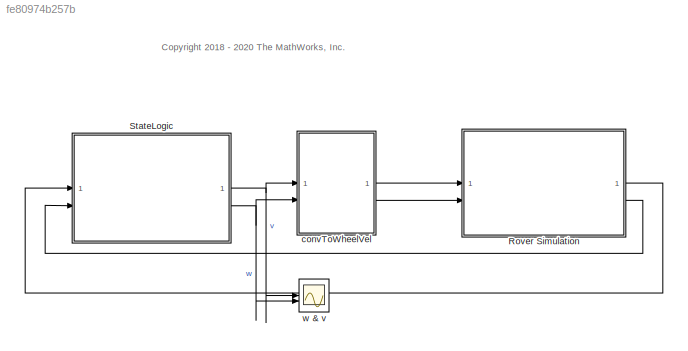
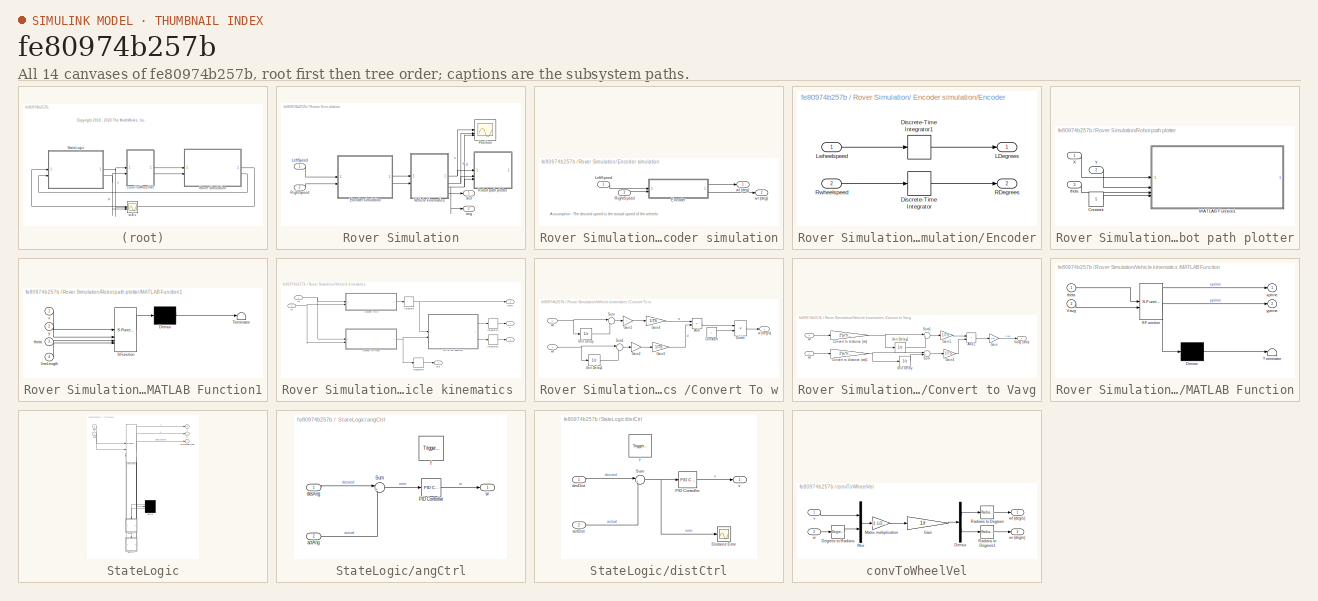
[diagram: thumbnail index - all 14 canvases of the model, root first then tree order]
MODEL slx_fe80974b257b
KIND model
CONFIG AbsTol = auto
CONFIG EnableMultiTasking = on
CONFIG FixedStep = TS
CONFIG MaxStep = auto
CONFIG MinStep = auto
CONFIG PostLoadFcn = params
CONFIG RelTol = 1e-3
CONFIG SampleTimeConstraint = Unconstrained
CONFIG SolverName = FixedStepDiscrete
CONFIG StartTime = 0.0
CONFIG StopTime = 5
WORKSPACE source: mxarray member
WORKSPACE Ia = 0.1
WORKSPACE Id = 0.25
WORKSPACE Pa = 5
WORKSPACE Pd = 9
WORKSPACE TS = 0.01
BLOCK [SubSystem] Rover Simulation
BLOCK [SubSystem] Rover Simulation/ Encoder simulation
BLOCK [SubSystem] Rover Simulation/ Encoder simulation/Encoder
BLOCK [DiscreteIntegrator] Rover Simulation/ Encoder simulation/Encoder/Discrete-Time Integrator
  ICPrevOutput = DiscIntNeverNeededParam
  ICPrevScaledInput = DiscIntNeverNeededParam
  InitialConditionSetting = Auto
  SampleTime = -1
BLOCK [DiscreteIntegrator] Rover Simulation/ Encoder simulation/Encoder/Discrete-Time Integrator1
  ICPrevOutput = DiscIntNeverNeededParam
  ICPrevScaledInput = DiscIntNeverNeededParam
  InitialConditionSetting = Auto
  SampleTime = -1
BLOCK [Outport] Rover Simulation/ Encoder simulation/Encoder/LDegrees
  VectorParamsAs1DForOutWhenUnconnected = off
BLOCK [Inport] Rover Simulation/ Encoder simulation/Encoder/Lwheelspeed
BLOCK [Outport] Rover Simulation/ Encoder simulation/Encoder/RDegrees
  Port = 2
  VectorParamsAs1DForOutWhenUnconnected = off
BLOCK [Inport] Rover Simulation/ Encoder simulation/Encoder/Rwheelspeed
  Port = 2
BLOCK [Inport] Rover Simulation/ Encoder simulation/LeftSpeed
BLOCK [Inport] Rover Simulation/ Encoder simulation/RightSpeed
  Port = 2
BLOCK [Outport] Rover Simulation/ Encoder simulation/wl (deg)
  VectorParamsAs1DForOutWhenUnconnected = off
BLOCK [Outport] Rover Simulation/ Encoder simulation/wr (deg)
  Port = 2
  VectorParamsAs1DForOutWhenUnconnected = off
BLOCK [Inport] Rover Simulation/LeftSpeed
BLOCK [Scope] Rover Simulation/Position
  Floating = off
  NumInputPorts = 3
  ScopeSpecificationString = Simulink.scopes.TimeScopeBlockCfg('CurrentConfiguration', extmgr.ConfigurationSet(extmgr.Configuration('Core','General UI',true),extmgr.Configuration('Core','Source UI',true),extmgr.Configuration('Sources','WiredSimulink',true),extmgr.Configuration('Visuals','Time Domain',true,'SerializedDisplays',{struct('MinYLimReal','-10.03722','MaxYLimReal','290.33494','YLabelReal','','MinYLimMag','0.00000','M...<+1567ch>
BLOCK [Inport] Rover Simulation/RightSpeed
  Port = 2
BLOCK [SubSystem] Rover Simulation/Robot path plotter
BLOCK [Constant] Rover Simulation/Robot path plotter/Constant
  Value = 5
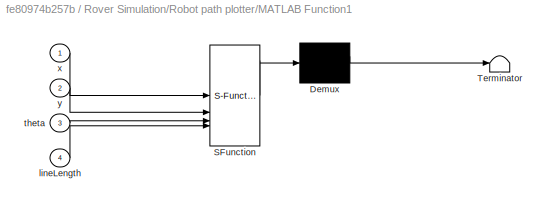
BLOCK [SubSystem] Rover Simulation/Robot path plotter/MATLAB Function1
  ErrorFcn = Stateflow.Translate.translate
  PermitHierarchicalResolution = ExplicitOnly
  SFBlockType = MATLAB Function
  TreatAsAtomicUnit = on
BLOCK [Demux] Rover Simulation/Robot path plotter/MATLAB Function1/ Demux 
  Outputs = 1
BLOCK [S-Function] Rover Simulation/Robot path plotter/MATLAB Function1/ SFunction 
  EnableBusSupport = on
  FunctionName = sf_sfun
  Parameters = StartTheta,StartX,StartY
  PortCounts = [4 1]
  SFcnIsStateOwnerBlock = off
  SFunctionDeploymentMode = off
  Tag = Stateflow S-Function 1
BLOCK [Terminator] Rover Simulation/Robot path plotter/MATLAB Function1/ Terminator 
BLOCK [Inport] Rover Simulation/Robot path plotter/MATLAB Function1/lineLength
  Port = 4
BLOCK [Inport] Rover Simulation/Robot path plotter/MATLAB Function1/theta
  Port = 3
BLOCK [Inport] Rover Simulation/Robot path plotter/MATLAB Function1/x
BLOCK [Inport] Rover Simulation/Robot path plotter/MATLAB Function1/y
  Port = 2
BLOCK [Inport] Rover Simulation/Robot path plotter/X
BLOCK [Inport] Rover Simulation/Robot path plotter/Y
  Port = 2
BLOCK [Inport] Rover Simulation/Robot path plotter/theta
  Port = 3
BLOCK [SubSystem] Rover Simulation/Vehicle kinematics 
BLOCK [SubSystem] Rover Simulation/Vehicle kinematics /Convert To w
BLOCK [Sum] Rover Simulation/Vehicle kinematics /Convert To w/Add
  IconShape = rectangular
  Inputs = +-
BLOCK [Constant] Rover Simulation/Vehicle kinematics /Convert To w/Constant
  Value = L
BLOCK [Product] Rover Simulation/Vehicle kinematics /Convert To w/Divide
  Inputs = */
BLOCK [Gain] Rover Simulation/Vehicle kinematics /Convert To w/Gain1
  Gain = r
BLOCK [Gain] Rover Simulation/Vehicle kinematics /Convert To w/Gain2
  Gain = r
BLOCK [Gain] Rover Simulation/Vehicle kinematics /Convert To w/Gain4
  Gain = 1/TS
BLOCK [Gain] Rover Simulation/Vehicle kinematics /Convert To w/Gain5
  Gain = 1/TS
BLOCK [Sum] Rover Simulation/Vehicle kinematics /Convert To w/Sum
  Inputs = |+-
BLOCK [Sum] Rover Simulation/Vehicle kinematics /Convert To w/Sum1
  Inputs = |+-
BLOCK [UnitDelay] Rover Simulation/Vehicle kinematics /Convert To w/Unit Delay
  HasFrameUpgradeWarning = on
  SampleTime = -1
BLOCK [UnitDelay] Rover Simulation/Vehicle kinematics /Convert To w/Unit Delay1
  HasFrameUpgradeWarning = on
  SampleTime = -1
BLOCK [Outport] Rover Simulation/Vehicle kinematics /Convert To w/w (deg//s)
  VectorParamsAs1DForOutWhenUnconnected = off
BLOCK [Inport] Rover Simulation/Vehicle kinematics /Convert To w/wl
BLOCK [Inport] Rover Simulation/Vehicle kinematics /Convert To w/wr
  Port = 2
BLOCK [SubSystem] Rover Simulation/Vehicle kinematics /Convert to Vavg
BLOCK [Sum] Rover Simulation/Vehicle kinematics /Convert to Vavg/Add1
  IconShape = rectangular
BLOCK [Gain] Rover Simulation/Vehicle kinematics /Convert to Vavg/Convert to distance (cm)
  Gain = 2*pi*r/360
BLOCK [Gain] Rover Simulation/Vehicle kinematics /Convert to Vavg/Convert to distance (cm)1
  Gain = 2*pi*r/360
BLOCK [Gain] Rover Simulation/Vehicle kinematics /Convert to Vavg/Gain
  Gain = 0.5
BLOCK [Gain] Rover Simulation/Vehicle kinematics /Convert to Vavg/Gain4
  Gain = 1/TS
BLOCK [Gain] Rover Simulation/Vehicle kinematics /Convert to Vavg/Gain5
  Gain = 1/TS
BLOCK [Sum] Rover Simulation/Vehicle kinematics /Convert to Vavg/Sum
  Inputs = |+-
BLOCK [Sum] Rover Simulation/Vehicle kinematics /Convert to Vavg/Sum1
  Inputs = |+-
BLOCK [UnitDelay] Rover Simulation/Vehicle kinematics /Convert to Vavg/Unit Delay
  HasFrameUpgradeWarning = on
  SampleTime = -1
BLOCK [UnitDelay] Rover Simulation/Vehicle kinematics /Convert to Vavg/Unit Delay1
  HasFrameUpgradeWarning = on
  SampleTime = -1
BLOCK [Outport] Rover Simulation/Vehicle kinematics /Convert to Vavg/Vavg (cm//s)
  VectorParamsAs1DForOutWhenUnconnected = off
BLOCK [Inport] Rover Simulation/Vehicle kinematics /Convert to Vavg/wl
BLOCK [Inport] Rover Simulation/Vehicle kinematics /Convert to Vavg/wr
  Port = 2
BLOCK [DiscreteIntegrator] Rover Simulation/Vehicle kinematics /Integrator
  ICPrevOutput = DiscIntNeverNeededParam
  ICPrevScaledInput = DiscIntNeverNeededParam
  InitialCondition = StartTheta
  InitialConditionSetting = Auto
  SampleTime = -1
  gainval = 1
BLOCK [DiscreteIntegrator] Rover Simulation/Vehicle kinematics /Integrator1
  ICPrevOutput = DiscIntNeverNeededParam
  ICPrevScaledInput = DiscIntNeverNeededParam
  InitialCondition = StartX
  InitialConditionSetting = Auto
  SampleTime = -1
  gainval = 1
BLOCK [DiscreteIntegrator] Rover Simulation/Vehicle kinematics /Integrator2
  ICPrevOutput = DiscIntNeverNeededParam
  ICPrevScaledInput = DiscIntNeverNeededParam
  InitialCondition = StartY
  InitialConditionSetting = Auto
  SampleTime = -1
  gainval = 1
BLOCK [DiscreteIntegrator] Rover Simulation/Vehicle kinematics /Integrator3
  ICPrevOutput = DiscIntNeverNeededParam
  ICPrevScaledInput = DiscIntNeverNeededParam
  InitialConditionSetting = Auto
  SampleTime = -1
  gainval = 1
BLOCK [SubSystem] Rover Simulation/Vehicle kinematics /MATLAB Function
  ErrorFcn = Stateflow.Translate.translate
  PermitHierarchicalResolution = ExplicitOnly
  SFBlockType = MATLAB Function
  TreatAsAtomicUnit = on
BLOCK [Demux] Rover Simulation/Vehicle kinematics /MATLAB Function/ Demux 
  Outputs = 1
BLOCK [S-Function] Rover Simulation/Vehicle kinematics /MATLAB Function/ SFunction 
  EnableBusSupport = on
  FunctionName = sf_sfun
  PortCounts = [2 3]
  SFcnIsStateOwnerBlock = off
  SFunctionDeploymentMode = off
  Tag = Stateflow S-Function 2
BLOCK [Terminator] Rover Simulation/Vehicle kinematics /MATLAB Function/ Terminator 
BLOCK [Inport] Rover Simulation/Vehicle kinematics /MATLAB Function/Vavg
  Port = 2
BLOCK [Inport] Rover Simulation/Vehicle kinematics /MATLAB Function/theta
BLOCK [Outport] Rover Simulation/Vehicle kinematics /MATLAB Function/xprime
  VectorParamsAs1DForOutWhenUnconnected = off
BLOCK [Outport] Rover Simulation/Vehicle kinematics /MATLAB Function/yprime
  Port = 2
  VectorParamsAs1DForOutWhenUnconnected = off
BLOCK [Outport] Rover Simulation/Vehicle kinematics /dist
  Port = 4
  VectorParamsAs1DForOutWhenUnconnected = off
BLOCK [Outport] Rover Simulation/Vehicle kinematics /theta
  Port = 3
  VectorParamsAs1DForOutWhenUnconnected = off
BLOCK [Inport] Rover Simulation/Vehicle kinematics /wl
BLOCK [Inport] Rover Simulation/Vehicle kinematics /wr
  Port = 2
BLOCK [Outport] Rover Simulation/Vehicle kinematics /x
  VectorParamsAs1DForOutWhenUnconnected = off
BLOCK [Outport] Rover Simulation/Vehicle kinematics /y
  Port = 2
  VectorParamsAs1DForOutWhenUnconnected = off
BLOCK [Outport] Rover Simulation/ang
  Port = 2
  VectorParamsAs1DForOutWhenUnconnected = off
BLOCK [Outport] Rover Simulation/dist
  VectorParamsAs1DForOutWhenUnconnected = off
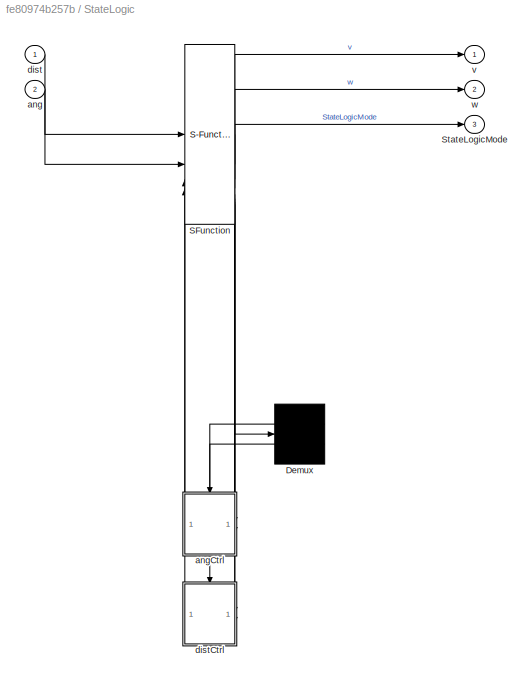
BLOCK [SubSystem] StateLogic
  ErrorFcn = Stateflow.Translate.translate
  PermitHierarchicalResolution = ExplicitOnly
  SFBlockType = Chart
  TreatAsAtomicUnit = on
BLOCK [Demux] StateLogic/ Demux 
  Outputs = 2
BLOCK [S-Function] StateLogic/ SFunction 
  EnableBusSupport = on
  FunctionName = sf_sfun
  PortCounts = [4 8]
  SFcnIsStateOwnerBlock = off
  SFunctionDeploymentMode = off
  Tag = Stateflow S-Function 4
BLOCK [Outport] StateLogic/StateLogicMode
  Port = 3
BLOCK [Inport] StateLogic/ang
  Port = 2
BLOCK [SubSystem] StateLogic/angCtrl
  PreDeleteFcn = Stateflow.SLINSF.SimulinkMan.removePreDeleteFcn
  UndoDeleteFcn = Stateflow.SLINSF.SimulinkMan.restorePreDeleteFcn
BLOCK [Reference] StateLogic/angCtrl/PID Controller  REF=slpidlib/PID Controller
  SourceBlock = slpidlib/PID Controller
  SourceType = PID 1dof
BLOCK [Sum] StateLogic/angCtrl/Sum
  Inputs = |+-
BLOCK [Inport] StateLogic/angCtrl/actAng
  OutDataTypeStr = double
  Port = 2
  PortDimensions = 1
  SignalType = real
  VarSizeSig = No
BLOCK [Inport] StateLogic/angCtrl/desAng
  OutDataTypeStr = double
  PortDimensions = 1
  SignalType = real
  VarSizeSig = No
BLOCK [TriggerPort] StateLogic/angCtrl/f
  CopyFcn = Stateflow.SLINSF.SimulinkMan.removeBlockPreDeleteFcn
  PreDeleteFcn = Stateflow.SLINSF.SimulinkMan.unsafePredeleteFcn
  StatesWhenEnabling = held
  TriggerType = function-call
  VariantControl = (inherit)
BLOCK [Outport] StateLogic/angCtrl/w
  VectorParamsAs1DForOutWhenUnconnected = off
BLOCK [Inport] StateLogic/dist
BLOCK [SubSystem] StateLogic/distCtrl
  PreDeleteFcn = Stateflow.SLINSF.SimulinkMan.removePreDeleteFcn
  UndoDeleteFcn = Stateflow.SLINSF.SimulinkMan.restorePreDeleteFcn
BLOCK [Scope] StateLogic/distCtrl/Distance Error
  Floating = off
  NumInputPorts = 1
  ScopeSpecificationString = Simulink.scopes.TimeScopeBlockCfg('CurrentConfiguration', extmgr.ConfigurationSet(extmgr.Configuration('Core','General UI',true),extmgr.Configuration('Core','Source UI',true),extmgr.Configuration('Sources','WiredSimulink',true,'DataLoggingVariableName','ScopeData1'),extmgr.Configuration('Visuals','Time Domain',true,'SerializedDisplays',{struct('MinYLimReal','29.58024','MaxYLimReal','30.21384','YLa...<+1530ch>
BLOCK [Reference] StateLogic/distCtrl/PID Controller  REF=slpidlib/PID Controller
  SourceBlock = slpidlib/PID Controller
  SourceType = PID 1dof
BLOCK [Sum] StateLogic/distCtrl/Sum
  Inputs = |+-
BLOCK [Inport] StateLogic/distCtrl/actDist
  OutDataTypeStr = double
  Port = 2
  PortDimensions = 1
  SignalType = real
  VarSizeSig = No
BLOCK [Inport] StateLogic/distCtrl/desDist
  OutDataTypeStr = double
  PortDimensions = 1
  SignalType = real
  VarSizeSig = No
BLOCK [TriggerPort] StateLogic/distCtrl/f
  CopyFcn = Stateflow.SLINSF.SimulinkMan.removeBlockPreDeleteFcn
  PreDeleteFcn = Stateflow.SLINSF.SimulinkMan.unsafePredeleteFcn
  StatesWhenEnabling = held
  TriggerType = function-call
  VariantControl = (inherit)
BLOCK [Outport] StateLogic/distCtrl/v
  VectorParamsAs1DForOutWhenUnconnected = off
BLOCK [Outport] StateLogic/v
  VectorParamsAs1DForOutWhenUnconnected = off
BLOCK [Outport] StateLogic/w
  Port = 2
  VectorParamsAs1DForOutWhenUnconnected = off
BLOCK [SubSystem] convToWheelVel
BLOCK [Gain] convToWheelVel/ Gain
  Gain = 1/r
  Multiplication = Matrix(K*u)
BLOCK [Reference] convToWheelVel/Degrees to Radians  REF=simulink_extras/Transformations/Degrees to
Radians
  SourceBlock = simulink_extras/Transformations/Degrees to\nRadians
  SourceType = DegreesToRadians
BLOCK [Demux] convToWheelVel/Demux
  Outputs = 2
BLOCK [Gain] convToWheelVel/Matrix multiplication
  Gain = [1 -L/2; 1 L/2]
  Multiplication = Matrix(K*u)
BLOCK [Mux] convToWheelVel/Mux
  DisplayOption = bar
  Inputs = 2
BLOCK [Reference] convToWheelVel/Radians to Degrees  REF=simulink_extras/Transformations/Radians
to Degrees
  SourceBlock = simulink_extras/Transformations/Radians\nto Degrees
  SourceType = RadiansToDegrees
BLOCK [Reference] convToWheelVel/Radians to Degrees1  REF=simulink_extras/Transformations/Radians
to Degrees
  SourceBlock = simulink_extras/Transformations/Radians\nto Degrees
  SourceType = RadiansToDegrees
BLOCK [Inport] convToWheelVel/v
BLOCK [Inport] convToWheelVel/w
  Port = 2
BLOCK [Outport] convToWheelVel/wl (deg//s)
  VectorParamsAs1DForOutWhenUnconnected = off
BLOCK [Outport] convToWheelVel/wr (deg//s)
  Port = 2
  VectorParamsAs1DForOutWhenUnconnected = off
BLOCK [Scope] w & v
  Floating = off
  NumInputPorts = 2
  ScopeSpecificationString = Simulink.scopes.TimeScopeBlockCfg('CurrentConfiguration', extmgr.ConfigurationSet(extmgr.Configuration('Core','General UI',true),extmgr.Configuration('Core','Source UI',true),extmgr.Configuration('Sources','WiredSimulink',true,'DataLoggingVariableName','ScopeData2'),extmgr.Configuration('Visuals','Time Domain',true,'SerializedDisplays',{struct('MinYLimReal','-1.12687','MaxYLimReal','10.14188','YLa...<+2207ch>
ANNOTATION (root): <copyright redacted>
ANNOTATION Rover Simulation/ Encoder simulation: Assumption - The desired speed is the actual speed of the wheels
LINE Rover Simulation/ Encoder simulation/Encoder/Discrete-Time Integrator1:1 -> Rover Simulation/ Encoder simulation/Encoder/LDegrees:1
LINE Rover Simulation/ Encoder simulation/Encoder/Discrete-Time Integrator:1 -> Rover Simulation/ Encoder simulation/Encoder/RDegrees:1
LINE Rover Simulation/ Encoder simulation/Encoder/Lwheelspeed:1 -> Rover Simulation/ Encoder simulation/Encoder/Discrete-Time Integrator1:1
LINE Rover Simulation/ Encoder simulation/Encoder/Rwheelspeed:1 -> Rover Simulation/ Encoder simulation/Encoder/Discrete-Time Integrator:1
LINE Rover Simulation/ Encoder simulation/Encoder:1 -> Rover Simulation/ Encoder simulation/wl (deg):1
LINE Rover Simulation/ Encoder simulation/Encoder:2 -> Rover Simulation/ Encoder simulation/wr (deg):1
LINE Rover Simulation/ Encoder simulation/LeftSpeed:1 -> Rover Simulation/ Encoder simulation/Encoder:1
LINE Rover Simulation/ Encoder simulation/RightSpeed:1 -> Rover Simulation/ Encoder simulation/Encoder:2
LINE Rover Simulation/ Encoder simulation:1 -> Rover Simulation/Vehicle kinematics :1
LINE Rover Simulation/ Encoder simulation:2 -> Rover Simulation/Vehicle kinematics :2
LINE Rover Simulation/LeftSpeed:1 -> Rover Simulation/ Encoder simulation:1
LINE Rover Simulation/RightSpeed:1 -> Rover Simulation/ Encoder simulation:2
LINE Rover Simulation/Robot path plotter/Constant:1 -> Rover Simulation/Robot path plotter/MATLAB Function1:4
LINE Rover Simulation/Robot path plotter/X:1 -> Rover Simulation/Robot path plotter/MATLAB Function1:1
LINE Rover Simulation/Robot path plotter/Y:1 -> Rover Simulation/Robot path plotter/MATLAB Function1:2
LINE Rover Simulation/Robot path plotter/theta:1 -> Rover Simulation/Robot path plotter/MATLAB Function1:3
LINE Rover Simulation/Vehicle kinematics /Convert To w/Add:1 -> Rover Simulation/Vehicle kinematics /Convert To w/Divide:1
LINE Rover Simulation/Vehicle kinematics /Convert To w/Constant:1 -> Rover Simulation/Vehicle kinematics /Convert To w/Divide:2
LINE Rover Simulation/Vehicle kinematics /Convert To w/Divide:1 -> Rover Simulation/Vehicle kinematics /Convert To w/w (deg//s):1
LINE Rover Simulation/Vehicle kinematics /Convert To w/Gain1:1 -> Rover Simulation/Vehicle kinematics /Convert To w/Gain4:1
LINE Rover Simulation/Vehicle kinematics /Convert To w/Gain2:1 -> Rover Simulation/Vehicle kinematics /Convert To w/Gain5:1
LINE Rover Simulation/Vehicle kinematics /Convert To w/Gain4:1 -> Rover Simulation/Vehicle kinematics /Convert To w/Add:1
LINE Rover Simulation/Vehicle kinematics /Convert To w/Gain5:1 -> Rover Simulation/Vehicle kinematics /Convert To w/Add:2
LINE Rover Simulation/Vehicle kinematics /Convert To w/Sum1:1 -> Rover Simulation/Vehicle kinematics /Convert To w/Gain2:1
LINE Rover Simulation/Vehicle kinematics /Convert To w/Sum:1 -> Rover Simulation/Vehicle kinematics /Convert To w/Gain1:1
LINE Rover Simulation/Vehicle kinematics /Convert To w/Unit Delay1:1 -> Rover Simulation/Vehicle kinematics /Convert To w/Sum1:2
LINE Rover Simulation/Vehicle kinematics /Convert To w/Unit Delay:1 -> Rover Simulation/Vehicle kinematics /Convert To w/Sum:2
NET Rover Simulation/Vehicle kinematics /Convert To w/wl:1 -> Rover Simulation/Vehicle kinematics /Convert To w/Sum1:1, Rover Simulation/Vehicle kinematics /Convert To w/Unit Delay1:1
NET Rover Simulation/Vehicle kinematics /Convert To w/wr:1 -> Rover Simulation/Vehicle kinematics /Convert To w/Sum:1, Rover Simulation/Vehicle kinematics /Convert To w/Unit Delay:1
LINE Rover Simulation/Vehicle kinematics /Convert To w:1 -> Rover Simulation/Vehicle kinematics /Integrator:1
LINE Rover Simulation/Vehicle kinematics /Convert to Vavg/Add1:1 -> Rover Simulation/Vehicle kinematics /Convert to Vavg/Gain:1
NET Rover Simulation/Vehicle kinematics /Convert to Vavg/Convert to distance (cm)1:1 -> Rover Simulation/Vehicle kinematics /Convert to Vavg/Sum:1, Rover Simulation/Vehicle kinematics /Convert to Vavg/Unit Delay:1
NET Rover Simulation/Vehicle kinematics /Convert to Vavg/Convert to distance (cm):1 -> Rover Simulation/Vehicle kinematics /Convert to Vavg/Sum1:1, Rover Simulation/Vehicle kinematics /Convert to Vavg/Unit Delay1:1
LINE Rover Simulation/Vehicle kinematics /Convert to Vavg/Gain4:1 -> Rover Simulation/Vehicle kinematics /Convert to Vavg/Add1:2
LINE Rover Simulation/Vehicle kinematics /Convert to Vavg/Gain5:1 -> Rover Simulation/Vehicle kinematics /Convert to Vavg/Add1:1
LINE Rover Simulation/Vehicle kinematics /Convert to Vavg/Gain:1 -> Rover Simulation/Vehicle kinematics /Convert to Vavg/Vavg (cm//s):1
LINE Rover Simulation/Vehicle kinematics /Convert to Vavg/Sum1:1 -> Rover Simulation/Vehicle kinematics /Convert to Vavg/Gain5:1
LINE Rover Simulation/Vehicle kinematics /Convert to Vavg/Sum:1 -> Rover Simulation/Vehicle kinematics /Convert to Vavg/Gain4:1
LINE Rover Simulation/Vehicle kinematics /Convert to Vavg/Unit Delay1:1 -> Rover Simulation/Vehicle kinematics /Convert to Vavg/Sum1:2
LINE Rover Simulation/Vehicle kinematics /Convert to Vavg/Unit Delay:1 -> Rover Simulation/Vehicle kinematics /Convert to Vavg/Sum:2
LINE Rover Simulation/Vehicle kinematics /Convert to Vavg/wl:1 -> Rover Simulation/Vehicle kinematics /Convert to Vavg/Convert to distance (cm):1
LINE Rover Simulation/Vehicle kinematics /Convert to Vavg/wr:1 -> Rover Simulation/Vehicle kinematics /Convert to Vavg/Convert to distance (cm)1:1
NET Rover Simulation/Vehicle kinematics /Convert to Vavg:1 -> Rover Simulation/Vehicle kinematics /Integrator3:1, Rover Simulation/Vehicle kinematics /MATLAB Function:2
LINE Rover Simulation/Vehicle kinematics /Integrator1:1 -> Rover Simulation/Vehicle kinematics /x:1
LINE Rover Simulation/Vehicle kinematics /Integrator2:1 -> Rover Simulation/Vehicle kinematics /y:1
LINE Rover Simulation/Vehicle kinematics /Integrator3:1 -> Rover Simulation/Vehicle kinematics /dist:1
NET Rover Simulation/Vehicle kinematics /Integrator:1 -> Rover Simulation/Vehicle kinematics /MATLAB Function:1, Rover Simulation/Vehicle kinematics /theta:1
LINE Rover Simulation/Vehicle kinematics /MATLAB Function:1 -> Rover Simulation/Vehicle kinematics /Integrator1:1
LINE Rover Simulation/Vehicle kinematics /MATLAB Function:2 -> Rover Simulation/Vehicle kinematics /Integrator2:1
NET Rover Simulation/Vehicle kinematics /wl:1 -> Rover Simulation/Vehicle kinematics /Convert To w:1, Rover Simulation/Vehicle kinematics /Convert to Vavg:1
NET Rover Simulation/Vehicle kinematics /wr:1 -> Rover Simulation/Vehicle kinematics /Convert To w:2, Rover Simulation/Vehicle kinematics /Convert to Vavg:2
NET Rover Simulation/Vehicle kinematics :1 -> Rover Simulation/Position:1, Rover Simulation/Robot path plotter:1
NET Rover Simulation/Vehicle kinematics :2 -> Rover Simulation/Position:2, Rover Simulation/Robot path plotter:2
NET Rover Simulation/Vehicle kinematics :3 -> Rover Simulation/Position:3, Rover Simulation/Robot path plotter:3, Rover Simulation/ang:1
LINE Rover Simulation/Vehicle kinematics :4 -> Rover Simulation/dist:1
LINE Rover Simulation:1 -> StateLogic:1
LINE Rover Simulation:2 -> StateLogic:2
NET StateLogic:1 -> convToWheelVel:1, w & v:1
NET StateLogic:2 -> convToWheelVel:2, w & v:2
LINE convToWheelVel/ Gain:1 -> convToWheelVel/Demux:1
LINE convToWheelVel/Degrees to Radians:1 -> convToWheelVel/Mux:2
LINE convToWheelVel/Demux:1 -> convToWheelVel/Radians to Degrees:1
LINE convToWheelVel/Demux:2 -> convToWheelVel/Radians to Degrees1:1
LINE convToWheelVel/Matrix multiplication:1 -> convToWheelVel/ Gain:1
LINE convToWheelVel/Mux:1 -> convToWheelVel/Matrix multiplication:1
LINE convToWheelVel/Radians to Degrees1:1 -> convToWheelVel/wr (deg//s):1
LINE convToWheelVel/Radians to Degrees:1 -> convToWheelVel/wl (deg//s):1
LINE convToWheelVel/v:1 -> convToWheelVel/Mux:1
LINE convToWheelVel/w:1 -> convToWheelVel/Degrees to Radians:1
LINE convToWheelVel:1 -> Rover Simulation:1
LINE convToWheelVel:2 -> Rover Simulation:2
note: NET lines group one-source signal fan-out (src -> all destinations, sorted); 1:1 wires keep LINE
CHART Rover Simulation/Vehicle kinematics /MATLAB Function states=1 transitions=1
  STATE_LABEL 'eML_blk_kernel()'
  STATE_LABEL 'SCRIPT:\nfunction [xprime, yprime] = vehiclesPath(theta, Vavg)\n%#codegen\n\n% Implement the equation for the real-world location of the rover\nxprime = Vavg*cosd(theta);\nyprime = Vavg*sind(theta);\n'
CHART StateLogic states=14 transitions=5
  STATE_LABEL 'State (Block)\nTransition Condition (->)\n\tTested at every time step denoted by the sample time'
  STATE_LABEL '<!DOCTYPE HTML PUBLIC "-//W3C//DTD HTML 4.0//EN" "http://www.w3.org/TR/REC-html40/strict.dtd">\n<html><head><meta name="qrichtext" content="1" /><style type="text/css">\np, li { white-space: pre-wrap; }\n</style></head><body align="left" style=" font-family:\'Helvetica\'; font-size:12px; font-weight:400; font-style:normal;">\n<p align="left" style=" margin-top:0px; margin-bottom:0px; margin-left:0px; ma...<+2648ch>'
  STATE_LABEL 'StopFirst\nentry:\nv = 0; w= 0;\n'
  STATE_LABEL "Simulation Begin at 'StopFirst'\nset\nv = 0\nw = 0"
  STATE_LABEL 'v = distCtrl(desDist,actDist)'
  STATE_LABEL '[] Learn to debug the Stateflow'
  STATE_LABEL 'MoveForward\nentry:\n  desDist = 30;\nduring, exit:\n  v = distCtrl(desDist,dist);\n  w = 0;\n'
  STATE_LABEL '?'
  STATE_LABEL 'Set velocity at constant \n\tv = 10\n\tw = 90'
  STATE_LABEL 'w = angCtrl(desAng,actAng)'
  STATE_LABEL 'Pause\nentry:\nv = 0;\nw = 0;\n'
  STATE_LABEL '?'
  STATE_LABEL 'Turn\nentry:\ndesAng = 180;\nduring, exit:\nv = 0;\nw = angCtrl(desAng,ang);\n'
  STATE_LABEL 'Stop\nentry:\nv = 0;\nw = 0;'
CHART Rover Simulation/Robot path plotter/MATLAB Function1 states=1 transitions=1
  STATE_LABEL 'eML_blk_kernel()'
  STATE_LABEL "SCRIPT:\nfunction plotRobot(x,y,theta,lineLength, StartX, StartY, StartTheta)\n\n% Create persistent variables for the figure windows\npersistent h h1 h2;\n\nif isempty(h)\n    % Set up the initial figure window to display the initial position of\n    % the rover\n    h = figure('name','Map of the Robot');\n    h1 = plot(StartX,StartY,'bo');\n    hold on\n    xlim([0 100])\n    ylim([0 100])\n    \n    % Update ...<+383ch>"
CHART  states=0 transitions=0
CHART  states=0 transitions=0
CHART  states=0 transitions=0
